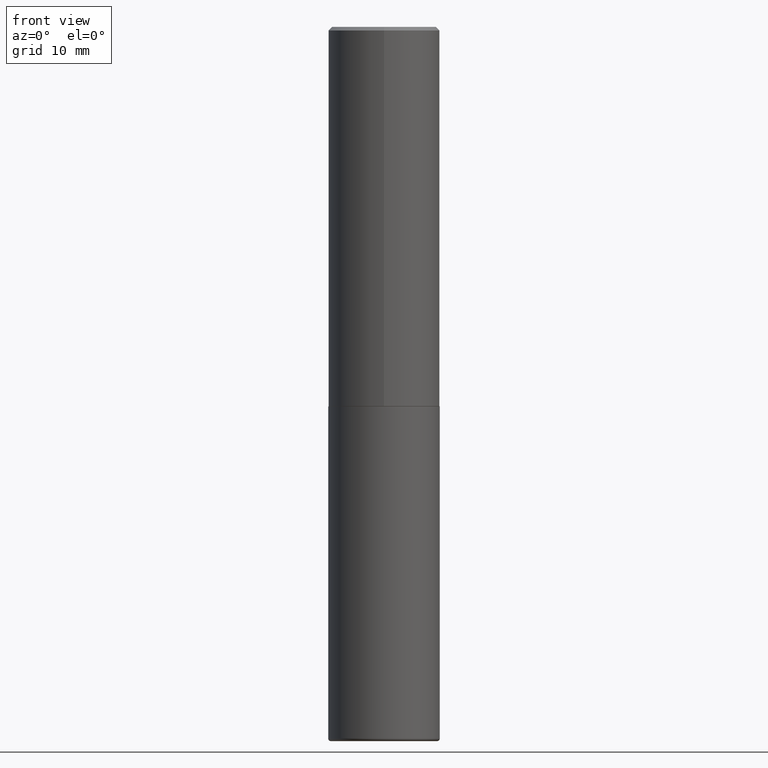
[diagram: clean part render]
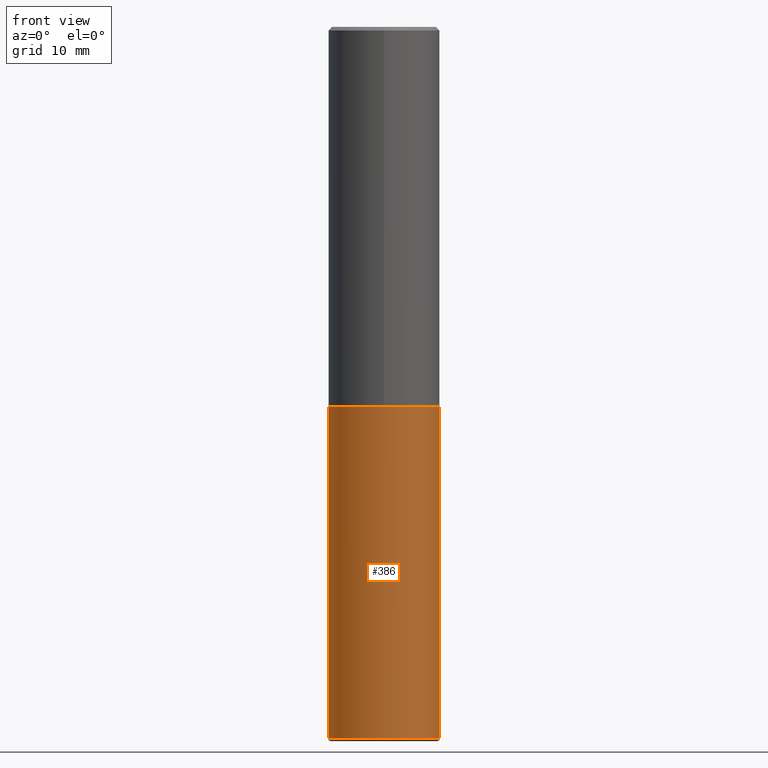
[diagram: same view with one face highlighted and labeled with its STEP entity id]
A machine part, front view. The second image highlights one B-rep face of the part: STEP entity #386.
In plain terms, the highlighted cylindrical surface (partial cylindrical patch) has radius 7.9375 mm, axis along (-0, 0, 1).
Its self-contained STEP definition (entity closure, byte-faithful):
#11 = ORIENTED_EDGE ( 'NONE', *, *, #367, .F. ) ;
#19 = AXIS2_PLACEMENT_3D ( 'NONE', #172, #49, #148 ) ;
#23 = CARTESIAN_POINT ( 'NONE',  ( -0.3125000000000000000, -8.446029440915494976E-15, -2.124999999999999556 ) ) ;
#25 = CYLINDRICAL_SURFACE ( 'NONE', #146, 0.3125000000000000000 ) ;
#34 = EDGE_LOOP ( 'NONE', ( #329, #35, #129, #11 ) ) ;
#35 = ORIENTED_EDGE ( 'NONE', *, *, #162, .T. ) ;
#49 = DIRECTION ( 'NONE',  ( -2.445468806185136597E-29, 3.491481338843145583E-15, 1.000000000000000000 ) ) ;
#59 = DIRECTION ( 'NONE',  ( 1.000000000000000000, -6.982962677686265133E-15, 0.000000000000000000 ) ) ;
#90 = CARTESIAN_POINT ( 'NONE',  ( 0.000000000000000000, 0.000000000000000000, 0.000000000000000000 ) ) ;
#93 = DIRECTION ( 'NONE',  ( 1.000000000000000000, -6.982962677686266711E-15, 4.876176775795936353E-29 ) ) ;
#96 = DIRECTION ( 'NONE',  ( -2.445468806185136597E-29, 3.491481338843145583E-15, 1.000000000000000000 ) ) ;
#103 = EDGE_CURVE ( 'NONE', #189, #297, #299, .T. ) ;
#122 = DIRECTION ( 'NONE',  ( -2.445468806185136597E-29, 3.491481338843145583E-15, 1.000000000000000000 ) ) ;
#126 = AXIS2_PLACEMENT_3D ( 'NONE', #130, #122, #59 ) ;
#129 = ORIENTED_EDGE ( 'NONE', *, *, #314, .T. ) ;
#130 = CARTESIAN_POINT ( 'NONE',  ( 5.196621213143414147E-29, -7.419397845041682046E-15, -2.124999999999999556 ) ) ;
#141 = DIRECTION ( 'NONE',  ( -2.445468806185136877E-29, 3.491481338843145188E-15, 1.000000000000000000 ) ) ;
#146 = AXIS2_PLACEMENT_3D ( 'NONE', #90, #96, #93 ) ;
#148 = DIRECTION ( 'NONE',  ( 1.000000000000000000, -6.982962677686269077E-15, 0.000000000000000000 ) ) ;
#162 = EDGE_CURVE ( 'NONE', #189, #359, #280, .T. ) ;
#169 = CARTESIAN_POINT ( 'NONE',  ( -0.3125000000000000000, 2.220446049250313081E-15, -1.537167215704658232E-29 ) ) ;
#172 = CARTESIAN_POINT ( 'NONE',  ( 9.745193192647769069E-29, -1.391355313528993407E-14, -3.984999999999999876 ) ) ;
#189 = VERTEX_POINT ( 'NONE', #368 ) ;
#198 = VECTOR ( 'NONE', #141, 39.37007874015748143 ) ;
#218 = CARTESIAN_POINT ( 'NONE',  ( 0.3125000000000000000, -9.601573681818640393E-15, -2.124999999999999556 ) ) ;
#269 = LINE ( 'NONE', #401, #365 ) ;
#280 = CIRCLE ( 'NONE', #19, 0.3125000000000000000 ) ;
#288 = CIRCLE ( 'NONE', #126, 0.3125000000000000000 ) ;
#297 = VERTEX_POINT ( 'NONE', #23 ) ;
#299 = LINE ( 'NONE', #169, #198 ) ;
#314 = EDGE_CURVE ( 'NONE', #359, #409, #269, .T. ) ;
#329 = ORIENTED_EDGE ( 'NONE', *, *, #103, .F. ) ;
#334 = DIRECTION ( 'NONE',  ( -2.445468806185136877E-29, 3.491481338843145188E-15, 1.000000000000000000 ) ) ;
#346 = FACE_OUTER_BOUND ( 'NONE', #34, .T. ) ;
#359 = VERTEX_POINT ( 'NONE', #382 ) ;
#365 = VECTOR ( 'NONE', #334, 39.37007874015748143 ) ;
#367 = EDGE_CURVE ( 'NONE', #297, #409, #288, .T. ) ;
#368 = CARTESIAN_POINT ( 'NONE',  ( -0.3125000000000000555, -1.169310708603962099E-14, -3.984999999999999876 ) ) ;
#382 = CARTESIAN_POINT ( 'NONE',  ( 0.3125000000000000555, -1.609572897206689399E-14, -3.984999999999999876 ) ) ;
#386 = ADVANCED_FACE ( 'NONE', ( #346 ), #25, .T. ) ;
#401 = CARTESIAN_POINT ( 'NONE',  ( 0.3125000000000000000, -2.182175836776958347E-15, 1.523805242436230075E-29 ) ) ;
#409 = VERTEX_POINT ( 'NONE', #218 ) ;